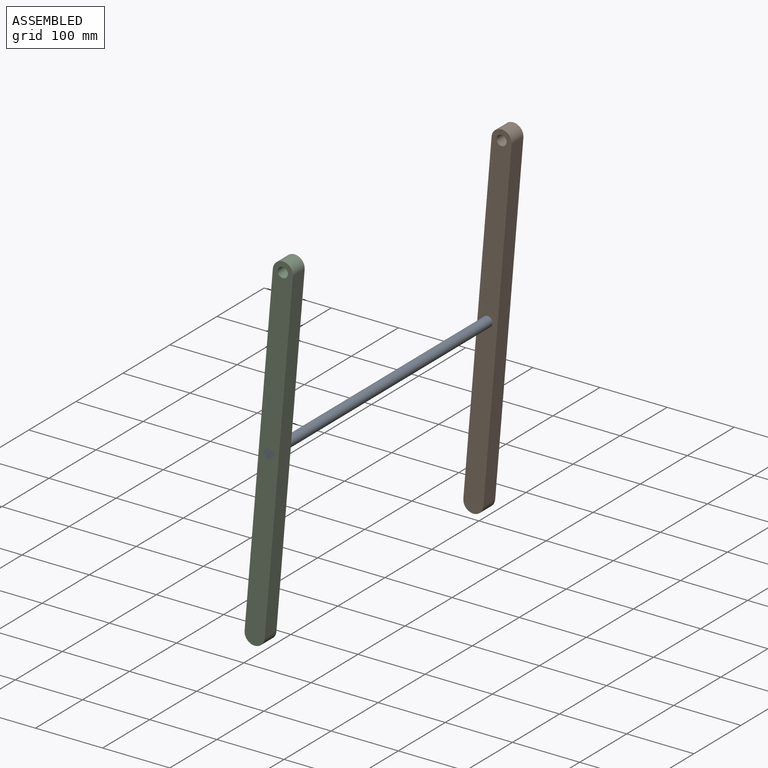
[diagram: assembled view]
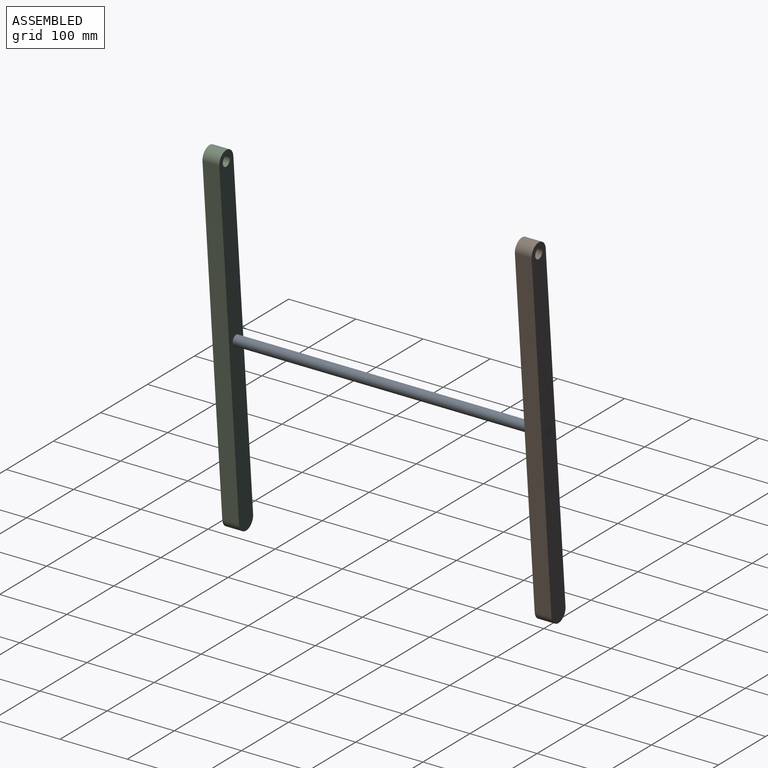
[diagram: assembled view, second angle]
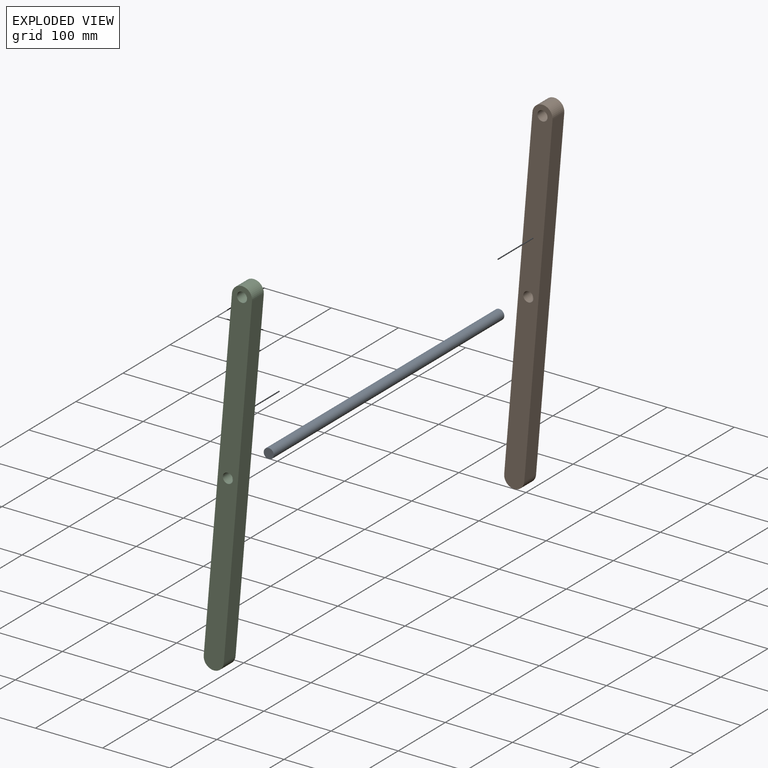
[diagram: exploded view]
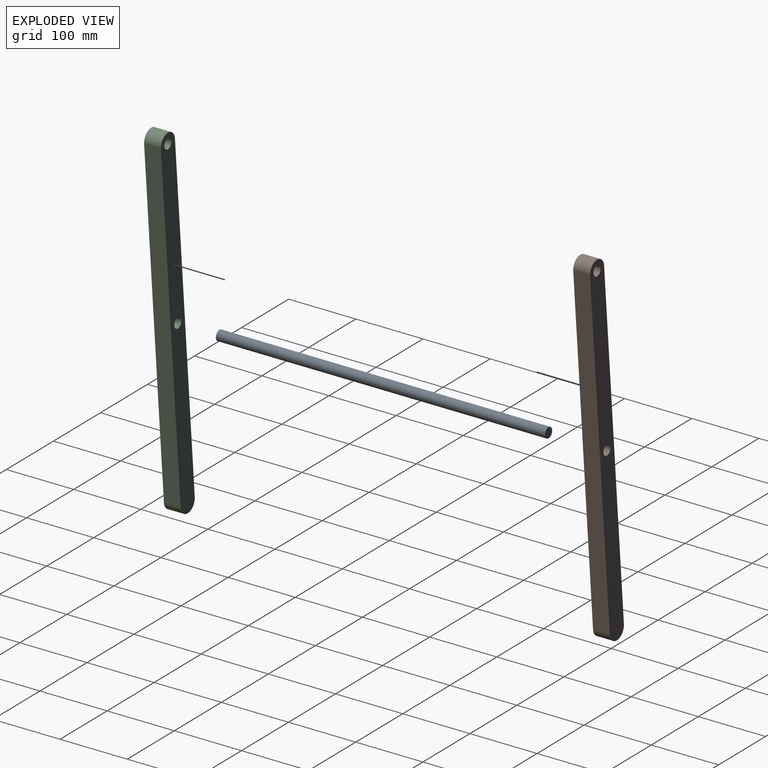
[diagram: exploded view, second angle]
ASSEMBLY  parts=3 mates=2
PART A: 3 faces, bbox 15x490x15 mm
  f0: cylinder r=7.5mm len=490mm, axis (0,1,0), area 23090.7mm2, adj f1,f2
  f1: plane 15x15mm, normal (0,-1,0), area 176.7mm2, adj f0
  f2: plane 15x15mm, normal (0,1,0), area 176.7mm2, adj f0
PART B: 8 faces, bbox 530x25x30 mm
  f0: cylinder r=15mm len=30mm, axis (0,1,0), area 1178.1mm2, adj f1,f3,f5,f6
  f1: plane 500x25mm, normal (0,0,1), area 12500mm2, adj f0,f2,f5,f6
  f2: cylinder r=15mm len=30mm, axis (0,1,0), area 1178.1mm2, adj f1,f3,f5,f6
  f3: plane 500x25mm, normal (0,0,-1), area 12500mm2, adj f0,f2,f5,f6
  f4: cylinder r=7.5mm len=25mm, axis (0,1,0), area 1178.1mm2, adj f5,f6
  f5: plane 530x30mm, normal (0,-1,0), area 15353.4mm2, adj f0,f1,f2,f3,f4,f7
  f6: plane 530x30mm, normal (0,1,0), area 15353.4mm2, adj f0,f1,f2,f3,f4,f7
  f7: cylinder r=7.5mm len=25mm, axis (0,-1,0), area 1178.1mm2, adj f5,f6
PART C: same geometry as B
PLACE A rot(axis=(0,-1,0),42.5deg) t=(516.94,-26.03,-240.1)mm
PLACE B rot(axis=(0,1,0),94.8deg) t=(516.94,206.47,-240.1)mm
PLACE C rot(axis=(0,1,0),94.8deg) t=(516.94,-258.53,-240.1)mm
MATE revolute A.f0 <-> B.f7  axis (0,1,0) through (516.94,218.97,-240.1)mm
MATE revolute A.f0 <-> C.f7  axis (0,-1,0) through (516.94,-271.03,-240.1)mm
